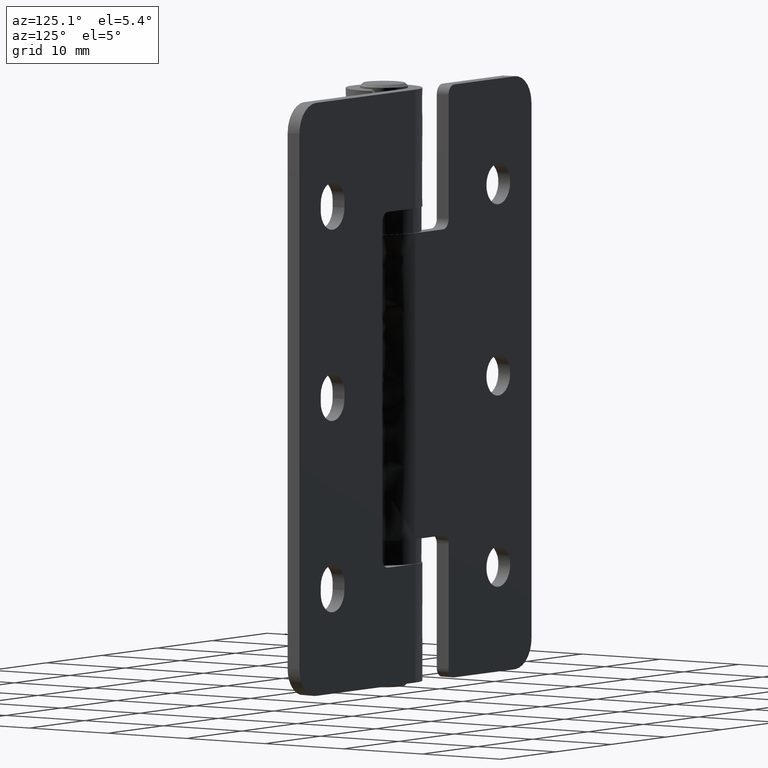
[diagram: clean part render]
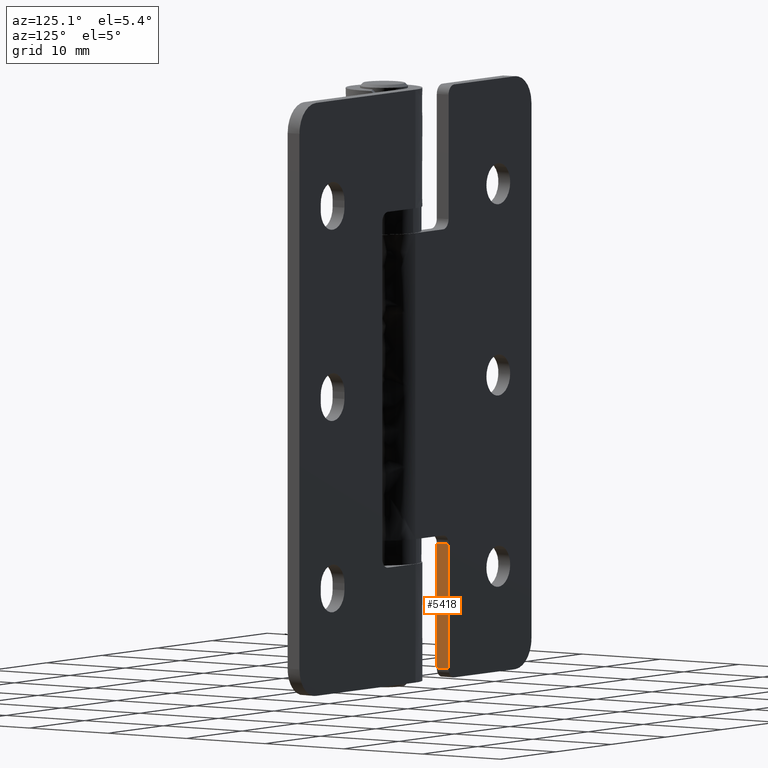
[diagram: same view with one face highlighted and labeled with its STEP entity id]
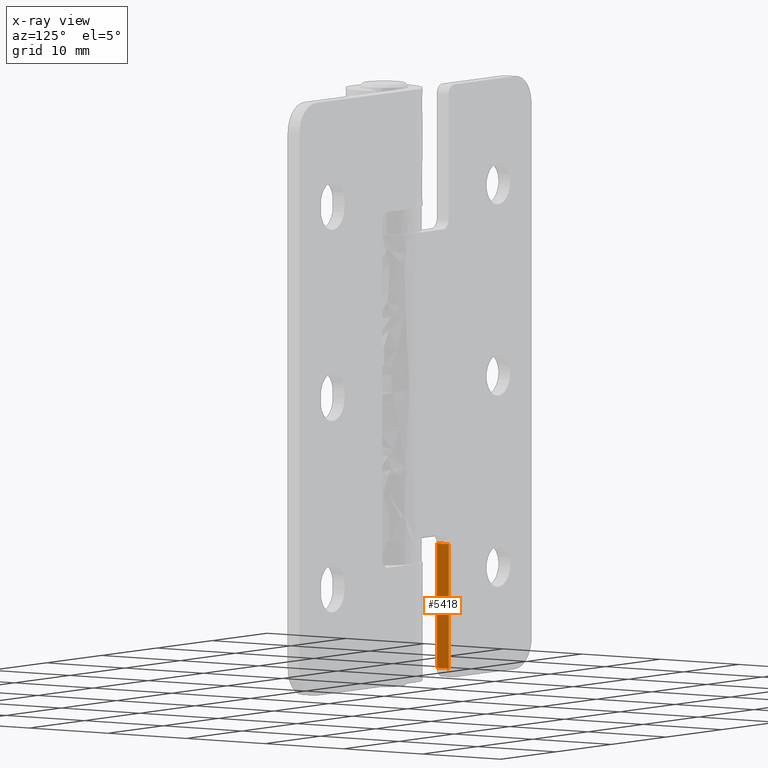
[diagram: x-ray of the same camera — body ghosted, the highlighted face saturated]
A machine part, auxiliary view. The second image highlights one B-rep face of the part: STEP entity #5418.
The next image is the same camera in x-ray: the body ghosted, the highlighted face saturated — about 0% of this face is hidden behind the body in this view.
In plain terms, the highlighted face is a freeform B-spline surface patch.
Its self-contained STEP definition (entity closure, byte-faithful):
#5257=CARTESIAN_POINT('',(-6.0,2.500000000000000,1.0));
#5258=VERTEX_POINT('',#5257);
#5279=CARTESIAN_POINT('',(-6.0,4.0,1.0));
#5280=VERTEX_POINT('',#5279);
#5294=CARTESIAN_POINT('',(-6.0,2.500000000000000,1.0));
#5295=CARTESIAN_POINT('',(-6.0,4.0,1.0));
#5296=QUASI_UNIFORM_CURVE('',1,(#5294,#5295),.UNSPECIFIED.,.F.,.U.);
#5297=EDGE_CURVE('',#5258,#5280,#5296,.T.);
#5391=CARTESIAN_POINT('',(-6.0,2.425075002907291,0.350650025196523));
#5392=CARTESIAN_POINT('',(-6.0,2.425075002907291,14.649350323490649));
#5393=CARTESIAN_POINT('',(-6.0,4.074925037325844,0.350650025196523));
#5394=CARTESIAN_POINT('',(-6.0,4.074925037325844,14.649350323490649));
#5395=B_SPLINE_SURFACE_WITH_KNOTS('',1,1,((#5391,#5393),(#5392,#5394)),.UNSPECIFIED.,.F.,.F.,.U.,(2,2),(2,2),(0.0,14.298700298294129),(0.041708334948495,0.958291687403247),.UNSPECIFIED.);
#5396=CARTESIAN_POINT('',(-6.0,2.500000000000000,14.0));
#5397=VERTEX_POINT('',#5396);
#5398=CARTESIAN_POINT('',(-6.0,2.500000000000000,14.0));
#5399=CARTESIAN_POINT('',(-6.0,2.500000000000000,1.0));
#5400=QUASI_UNIFORM_CURVE('',1,(#5398,#5399),.UNSPECIFIED.,.F.,.U.);
#5401=EDGE_CURVE('',#5397,#5258,#5400,.T.);
#5402=ORIENTED_EDGE('',*,*,#5401,.T.);
#5403=ORIENTED_EDGE('',*,*,#5297,.T.);
#5404=CARTESIAN_POINT('',(-6.0,4.0,14.0));
#5405=VERTEX_POINT('',#5404);
#5406=CARTESIAN_POINT('',(-6.0,4.0,1.0));
#5407=CARTESIAN_POINT('',(-6.0,4.0,14.0));
#5408=QUASI_UNIFORM_CURVE('',1,(#5406,#5407),.UNSPECIFIED.,.F.,.U.);
#5409=EDGE_CURVE('',#5280,#5405,#5408,.T.);
#5410=ORIENTED_EDGE('',*,*,#5409,.T.);
#5411=CARTESIAN_POINT('',(-6.0,4.0,14.0));
#5412=CARTESIAN_POINT('',(-6.0,2.500000000000000,14.0));
#5413=QUASI_UNIFORM_CURVE('',1,(#5411,#5412),.UNSPECIFIED.,.F.,.U.);
#5414=EDGE_CURVE('',#5405,#5397,#5413,.T.);
#5415=ORIENTED_EDGE('',*,*,#5414,.T.);
#5416=EDGE_LOOP('',(#5402,#5403,#5410,#5415));
#5417=FACE_OUTER_BOUND('',#5416,.T.);
#5418=ADVANCED_FACE('',(#5417),#5395,.F.);